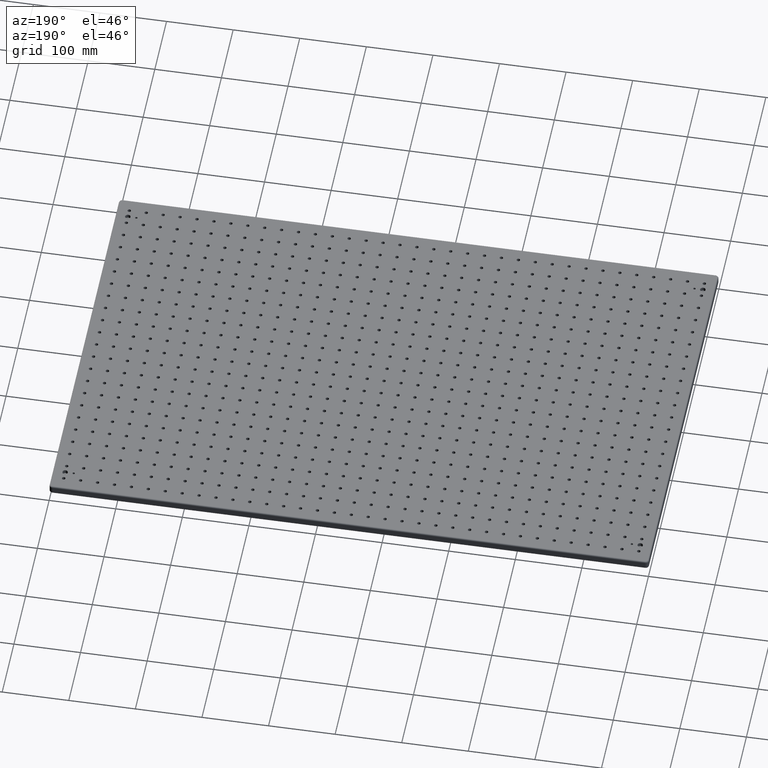
[diagram: clean part render]
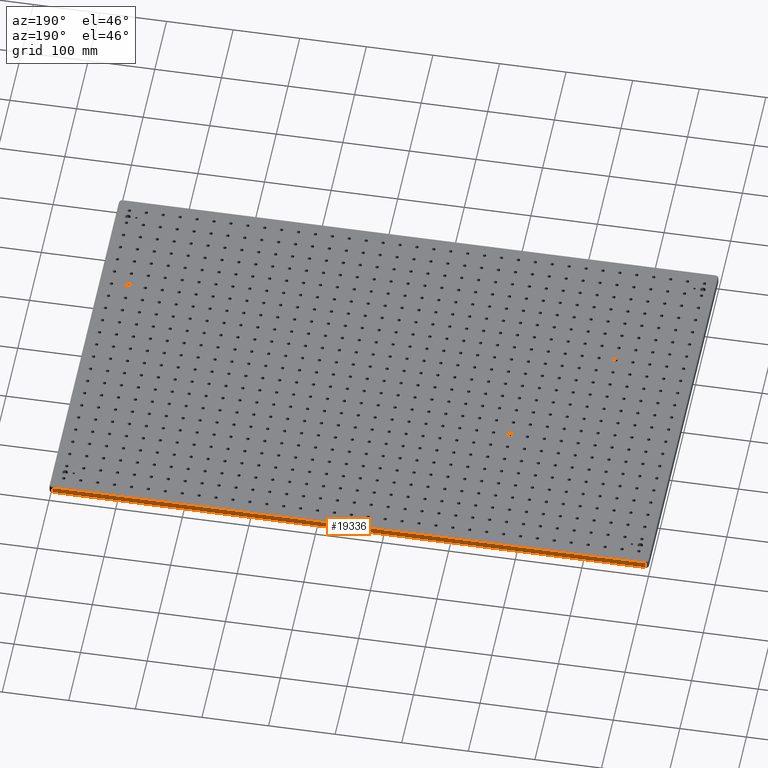
[diagram: same view with one face highlighted and labeled with its STEP entity id]
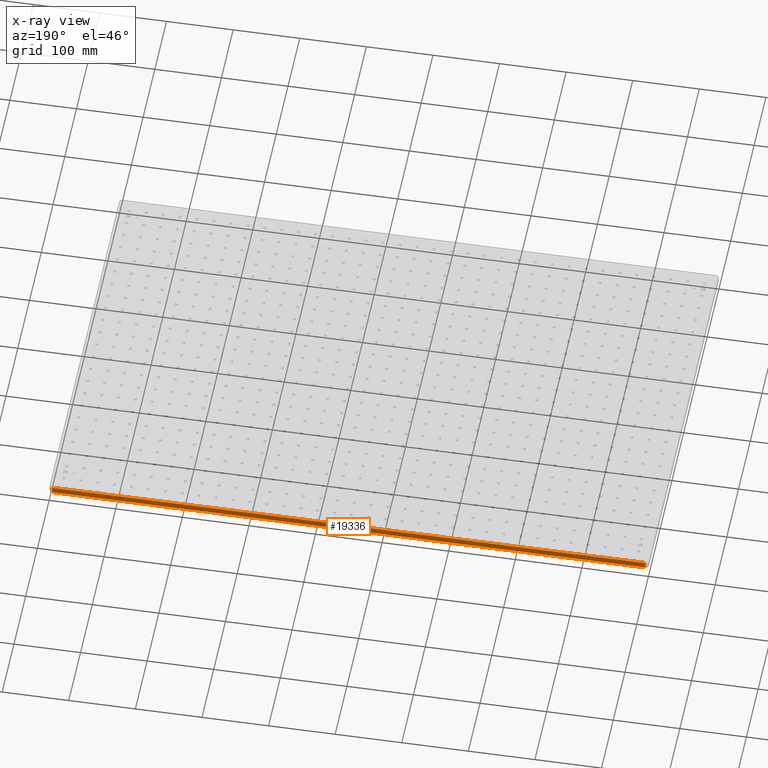
[diagram: x-ray of the same camera — body ghosted, the highlighted face saturated]
A machine part, auxiliary view. The second image highlights one B-rep face of the part: STEP entity #19336.
The next image is the same camera in x-ray: the body ghosted, the highlighted face saturated — about 0% of this face is hidden behind the body in this view.
In plain terms, the highlighted planar face has unit normal (0, 1, -0).
Its self-contained STEP definition (entity closure, byte-faithful):
#105 = DIRECTION ( 'NONE',  ( 1.000000000000000000, -1.233581138472396200E-016, -0.0000000000000000000 ) ) ;
#540 = VERTEX_POINT ( 'NONE', #52936 ) ;
#1026 = VERTEX_POINT ( 'NONE', #3666 ) ;
#3666 = CARTESIAN_POINT ( 'NONE',  ( 4.999999999999999100, 600.0000000000000000, -11.00000000000000000 ) ) ;
#5432 = EDGE_LOOP ( 'NONE', ( #14064, #7525, #60860, #27969 ) ) ;
#5609 = CARTESIAN_POINT ( 'NONE',  ( 0.0000000000000000000, 600.0000000000000000, -11.00000000000000000 ) ) ;
#6563 = EDGE_CURVE ( 'NONE', #1026, #7284, #27428, .T. ) ;
#7284 = VERTEX_POINT ( 'NONE', #55995 ) ;
#7525 = ORIENTED_EDGE ( 'NONE', *, *, #35047, .T. ) ;
#9058 = LINE ( 'NONE', #5609, #59295 ) ;
#9468 = CARTESIAN_POINT ( 'NONE',  ( 894.9999999999998900, 599.9999999999998900, -11.00000000000000000 ) ) ;
#14064 = ORIENTED_EDGE ( 'NONE', *, *, #34122, .T. ) ;
#14273 = LINE ( 'NONE', #18811, #18718 ) ;
#17805 = VECTOR ( 'NONE', #28363, 1000.000000000000000 ) ;
#18718 = VECTOR ( 'NONE', #105, 1000.000000000000000 ) ;
#18811 = CARTESIAN_POINT ( 'NONE',  ( 894.9999999999998900, 599.9999999999998900, -2.000000000000000000 ) ) ;
#19336 = ADVANCED_FACE ( 'NONE', ( #43209 ), #46676, .T. ) ;
#21582 = CARTESIAN_POINT ( 'NONE',  ( 894.9999999999998900, 599.9999999999998900, -13.00000000000000000 ) ) ;
#21766 = DIRECTION ( 'NONE',  ( -0.0000000000000000000, -0.0000000000000000000, -1.000000000000000000 ) ) ;
#25233 = DIRECTION ( 'NONE',  ( -1.000000000000000000, 1.233581138472396200E-016, 0.0000000000000000000 ) ) ;
#27428 = LINE ( 'NONE', #49493, #17805 ) ;
#27969 = ORIENTED_EDGE ( 'NONE', *, *, #49336, .T. ) ;
#28363 = DIRECTION ( 'NONE',  ( 0.0000000000000000000, 0.0000000000000000000, 1.000000000000000000 ) ) ;
#32105 = LINE ( 'NONE', #21582, #55726 ) ;
#34122 = EDGE_CURVE ( 'NONE', #540, #59304, #32105, .T. ) ;
#35047 = EDGE_CURVE ( 'NONE', #59304, #1026, #9058, .T. ) ;
#43209 = FACE_OUTER_BOUND ( 'NONE', #5432, .T. ) ;
#46459 = CARTESIAN_POINT ( 'NONE',  ( 0.0000000000000000000, 600.0000000000000000, -13.00000000000000000 ) ) ;
#46676 = PLANE ( 'NONE',  #47185 ) ;
#46861 = DIRECTION ( 'NONE',  ( -1.000000000000000000, 1.233581138472396200E-016, 0.0000000000000000000 ) ) ;
#47185 = AXIS2_PLACEMENT_3D ( 'NONE', #46459, #55525, #46861 ) ;
#49336 = EDGE_CURVE ( 'NONE', #7284, #540, #14273, .T. ) ;
#49493 = CARTESIAN_POINT ( 'NONE',  ( 4.999999999999999100, 600.0000000000000000, -13.00000000000000000 ) ) ;
#52936 = CARTESIAN_POINT ( 'NONE',  ( 894.9999999999998900, 599.9999999999998900, -2.000000000000000000 ) ) ;
#55525 = DIRECTION ( 'NONE',  ( 1.233581138472396200E-016, 1.000000000000000000, -0.0000000000000000000 ) ) ;
#55726 = VECTOR ( 'NONE', #21766, 1000.000000000000000 ) ;
#55995 = CARTESIAN_POINT ( 'NONE',  ( 4.999999999999999100, 600.0000000000000000, -2.000000000000000000 ) ) ;
#59295 = VECTOR ( 'NONE', #25233, 1000.000000000000000 ) ;
#59304 = VERTEX_POINT ( 'NONE', #9468 ) ;
#60860 = ORIENTED_EDGE ( 'NONE', *, *, #6563, .T. ) ;